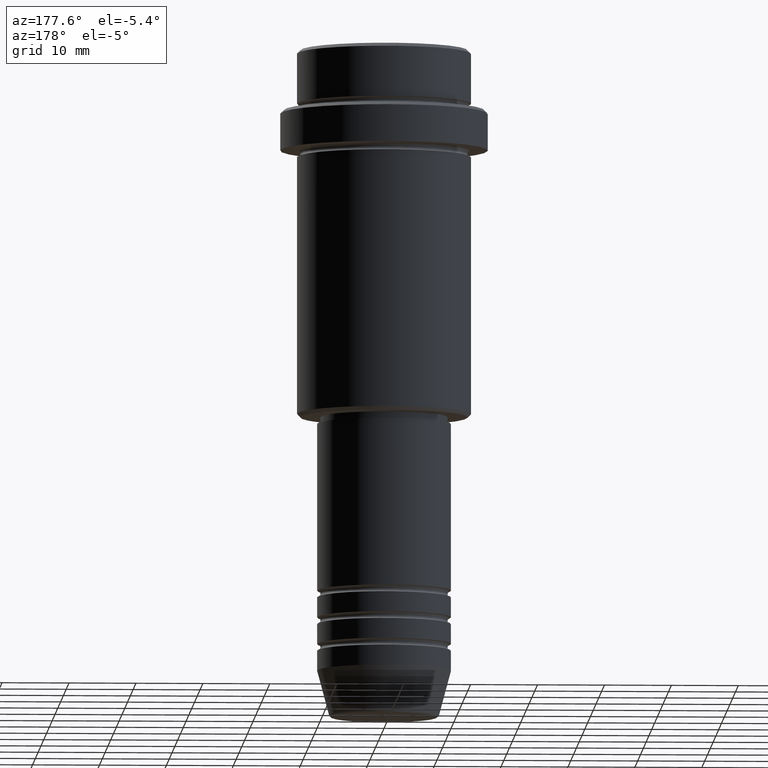
[diagram: clean part render]
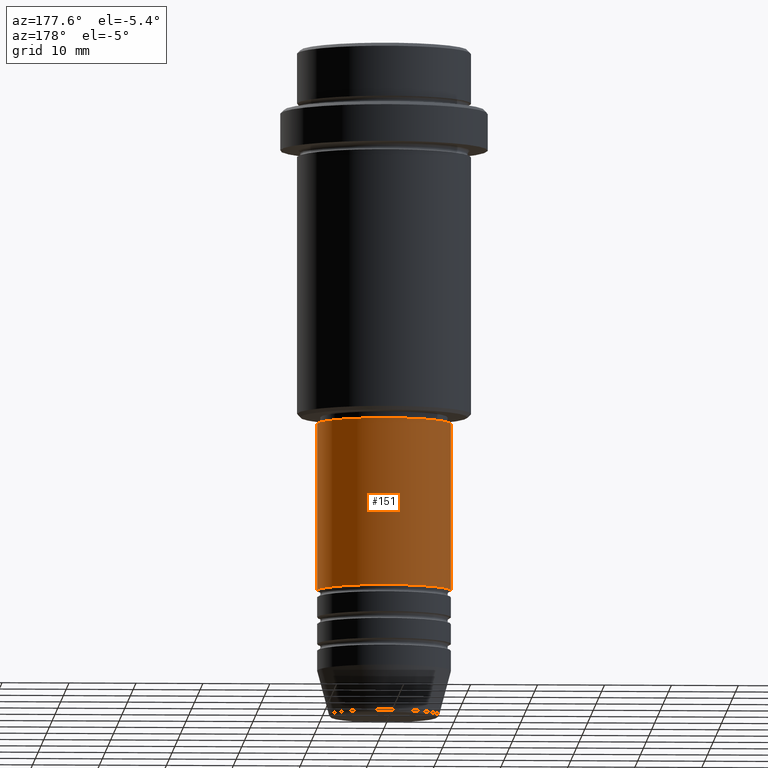
[diagram: same view with one face highlighted and labeled with its STEP entity id]
A machine part, auxiliary view. The second image highlights one B-rep face of the part: STEP entity #151.
In plain terms, the highlighted cylindrical surface (partial cylindrical patch) has radius 10 mm, axis along (-0, -0, 1).
Its self-contained STEP definition (entity closure, byte-faithful):
#19 = DIRECTION ( 'NONE',  ( -0.000000000000000000, -0.000000000000000000, 1.000000000000000000 ) ) ;
#101 = ORIENTED_EDGE ( 'NONE', *, *, #1091, .T. ) ;
#120 = VERTEX_POINT ( 'NONE', #1023 ) ;
#139 = AXIS2_PLACEMENT_3D ( 'NONE', #424, #19, #662 ) ;
#143 = AXIS2_PLACEMENT_3D ( 'NONE', #496, #383, #826 ) ;
#151 = ADVANCED_FACE ( 'NONE', ( #836 ), #1273, .T. ) ;
#189 = VERTEX_POINT ( 'NONE', #632 ) ;
#297 = DIRECTION ( 'NONE',  ( 1.000000000000000000, 0.000000000000000000, 0.000000000000000000 ) ) ;
#383 = DIRECTION ( 'NONE',  ( -0.000000000000000000, -0.000000000000000000, 1.000000000000000000 ) ) ;
#400 = VERTEX_POINT ( 'NONE', #563 ) ;
#424 = CARTESIAN_POINT ( 'NONE',  ( 0.000000000000000000, 0.000000000000000000, -80.99999999999987210 ) ) ;
#478 = AXIS2_PLACEMENT_3D ( 'NONE', #1279, #499, #297 ) ;
#496 = CARTESIAN_POINT ( 'NONE',  ( 0.000000000000000000, 0.000000000000000000, -55.99999999999997868 ) ) ;
#499 = DIRECTION ( 'NONE',  ( -0.000000000000000000, -0.000000000000000000, 1.000000000000000000 ) ) ;
#534 = ORIENTED_EDGE ( 'NONE', *, *, #1252, .F. ) ;
#563 = CARTESIAN_POINT ( 'NONE',  ( -10.00000000000000178, 1.224646799147353454E-15, -55.99999999999997868 ) ) ;
#580 = EDGE_LOOP ( 'NONE', ( #698, #101, #1170, #534 ) ) ;
#632 = CARTESIAN_POINT ( 'NONE',  ( 10.00000000000000178, 0.000000000000000000, -55.99999999999997868 ) ) ;
#634 = DIRECTION ( 'NONE',  ( -0.000000000000000000, -0.000000000000000000, 1.000000000000000000 ) ) ;
#662 = DIRECTION ( 'NONE',  ( 1.000000000000000000, 0.000000000000000000, 0.000000000000000000 ) ) ;
#671 = LINE ( 'NONE', #1319, #1375 ) ;
#698 = ORIENTED_EDGE ( 'NONE', *, *, #746, .T. ) ;
#742 = CARTESIAN_POINT ( 'NONE',  ( -10.00000000000000178, 1.224646799147353454E-15, 0.000000000000000000 ) ) ;
#746 = EDGE_CURVE ( 'NONE', #120, #1058, #1372, .T. ) ;
#763 = CIRCLE ( 'NONE', #143, 10.00000000000000178 ) ;
#826 = DIRECTION ( 'NONE',  ( 1.000000000000000000, 0.000000000000000000, 0.000000000000000000 ) ) ;
#836 = FACE_OUTER_BOUND ( 'NONE', #580, .T. ) ;
#846 = LINE ( 'NONE', #742, #1016 ) ;
#927 = CARTESIAN_POINT ( 'NONE',  ( -10.00000000000000000, 1.224646799147353256E-15, -80.99999999999987210 ) ) ;
#1016 = VECTOR ( 'NONE', #1269, 1000.000000000000000 ) ;
#1023 = CARTESIAN_POINT ( 'NONE',  ( 10.00000000000000000, 0.000000000000000000, -80.99999999999987210 ) ) ;
#1058 = VERTEX_POINT ( 'NONE', #927 ) ;
#1091 = EDGE_CURVE ( 'NONE', #1058, #400, #846, .T. ) ;
#1119 = EDGE_CURVE ( 'NONE', #189, #400, #763, .T. ) ;
#1170 = ORIENTED_EDGE ( 'NONE', *, *, #1119, .F. ) ;
#1252 = EDGE_CURVE ( 'NONE', #120, #189, #671, .T. ) ;
#1269 = DIRECTION ( 'NONE',  ( -0.000000000000000000, -0.000000000000000000, 1.000000000000000000 ) ) ;
#1273 = CYLINDRICAL_SURFACE ( 'NONE', #478, 10.00000000000000178 ) ;
#1279 = CARTESIAN_POINT ( 'NONE',  ( 0.000000000000000000, 0.000000000000000000, 0.000000000000000000 ) ) ;
#1319 = CARTESIAN_POINT ( 'NONE',  ( 10.00000000000000178, 0.000000000000000000, 0.000000000000000000 ) ) ;
#1372 = CIRCLE ( 'NONE', #139, 10.00000000000000000 ) ;
#1375 = VECTOR ( 'NONE', #634, 1000.000000000000000 ) ;